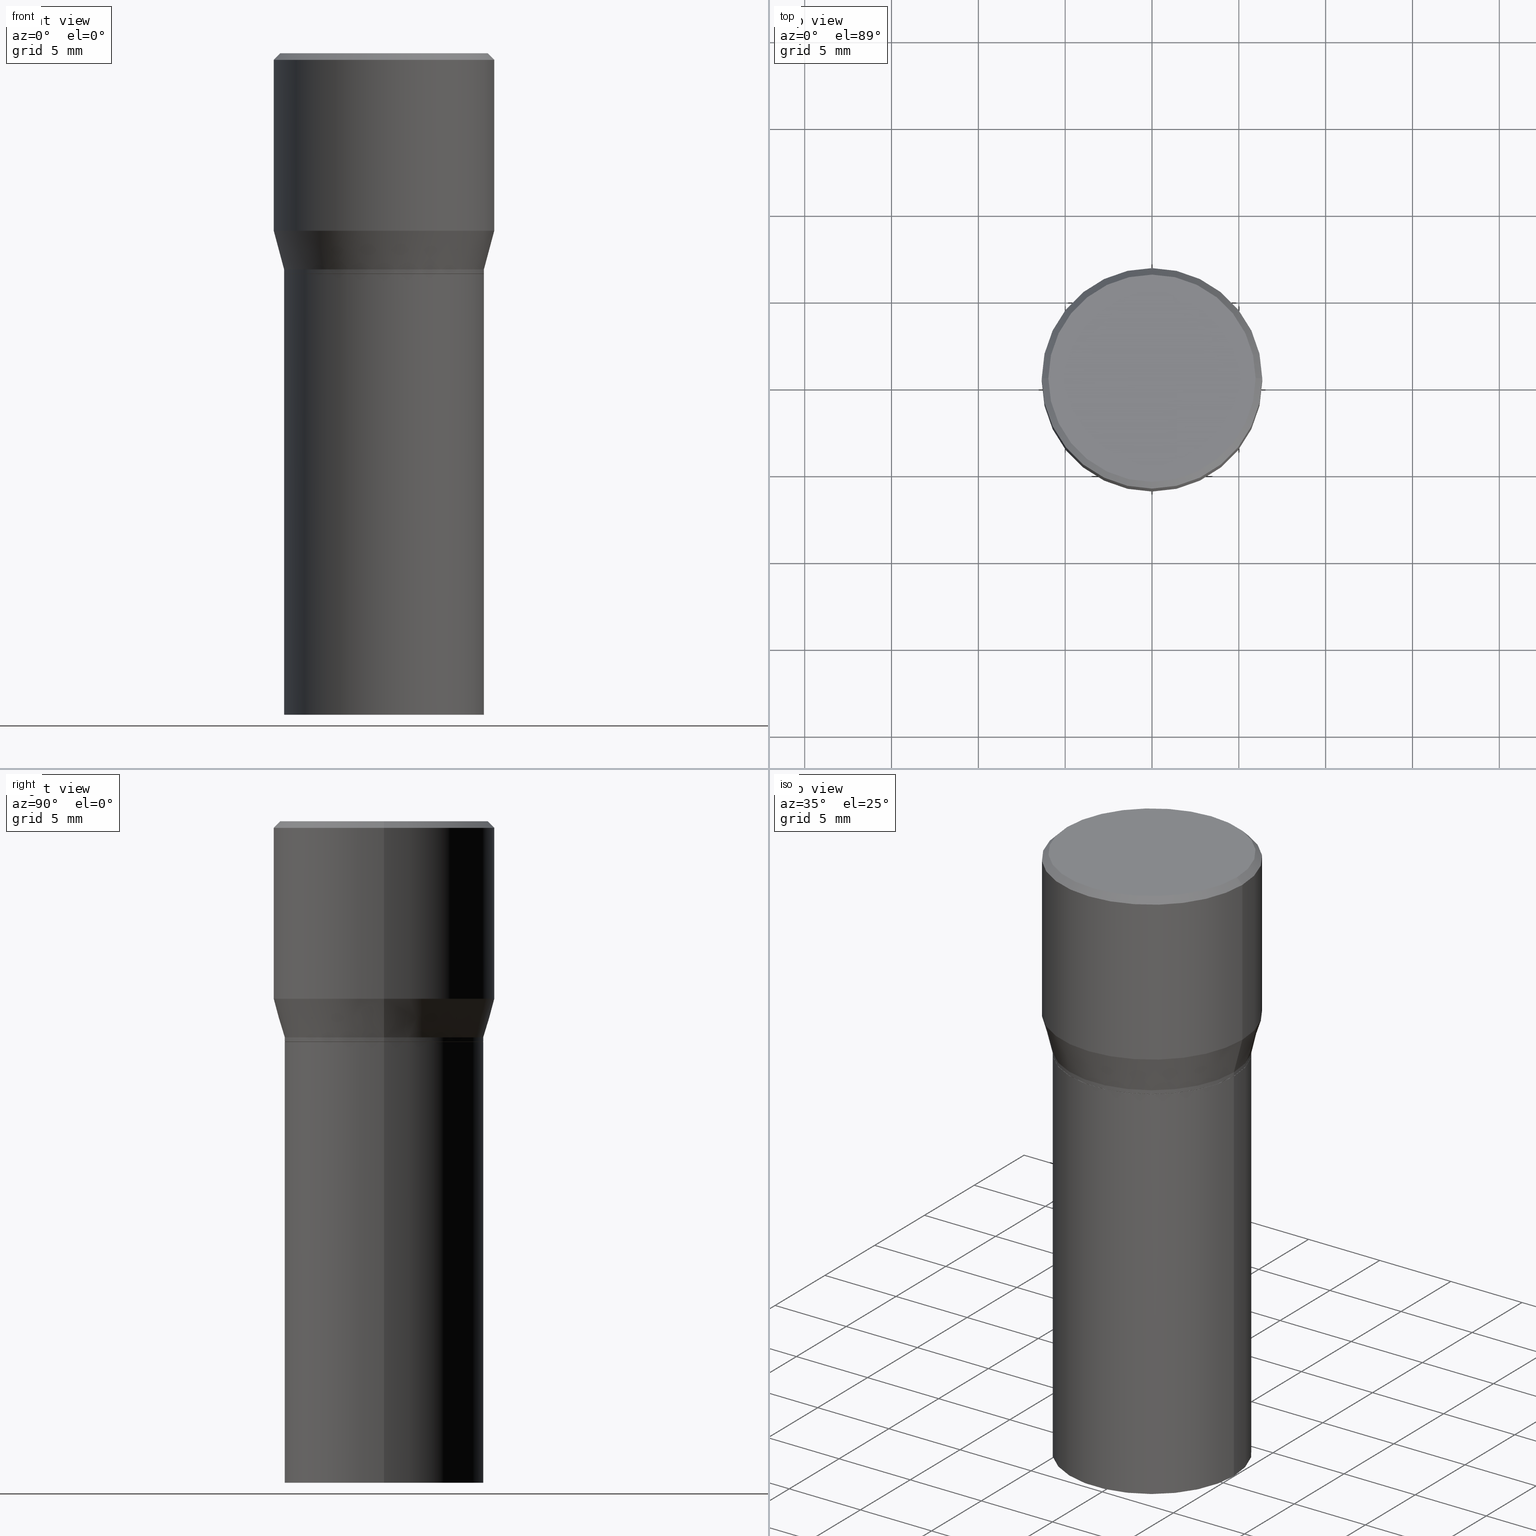
[diagram: canonical four-view strip — front | top / right | iso, engineering-drawing reading convention]
A machine part, canonical four-view strip (front | top / right | iso — engineering-drawing reading convention). The complete STEP part file that produces these views, byte-faithful:
ISO-10303-21;
HEADER;
FILE_DESCRIPTION (( 'STEP AP203' ),
    '1' );
FILE_NAME ('39557.STEP',
    '2024-03-12T19:03:33',
    ( '' ),
    ( '' ),
    'SwSTEP 2.0',
    'SolidWorks 2023',
    '' );
FILE_SCHEMA (( 'CONFIG_CONTROL_DESIGN' ));
ENDSEC;

DATA;
#1 = ORIENTED_EDGE ( 'NONE', *, *, #278, .F. ) ;
#2 = APPROVAL_DATE_TIME ( #72, #68 ) ;
#3 = VECTOR ( 'NONE', #301, 39.37007874015748143 ) ;
#4 = CC_DESIGN_SECURITY_CLASSIFICATION ( #40, ( #18 ) ) ;
#5 = EDGE_CURVE ( 'NONE', #112, #214, #177, .T. ) ;
#6 = CARTESIAN_POINT ( 'NONE',  ( 0.2265500000000000014, -3.325985123381975211E-15, -0.4995000000000001661 ) ) ;
#7 = UNCERTAINTY_MEASURE_WITH_UNIT (LENGTH_MEASURE( 1.000000000000000082E-05 ), #57, 'distance_accuracy_value', 'NONE');
#8 = CARTESIAN_POINT ( 'NONE',  ( 3.668203209277705088E-31, -5.237222008264718399E-17, -0.01499999999999999944 ) ) ;
#9 = CARTESIAN_POINT ( 'NONE',  ( 3.668203209277705088E-31, -5.237222008264718399E-17, -0.01499999999999999944 ) ) ;
#10 = AXIS2_PLACEMENT_3D ( 'NONE', #48, #300, #348 ) ;
#11 = CARTESIAN_POINT ( 'NONE',  ( 1.222734403092568719E-29, -1.745740669421573186E-15, -0.5000000000000001110 ) ) ;
#12 = EDGE_LOOP ( 'NONE', ( #218, #349, #434, #422 ) ) ;
#13 = EDGE_CURVE ( 'NONE', #437, #183, #339, .T. ) ;
#14 = CARTESIAN_POINT ( 'NONE',  ( 0.2500000000000000000, -1.798112889504214151E-15, -0.01499999999999999944 ) ) ;
#15 = CARTESIAN_POINT ( 'NONE',  ( -0.2265500000000000014, -1.881746770978639193E-15, -1.500000000000000222 ) ) ;
#16 = ORIENTED_EDGE ( 'NONE', *, *, #458, .F. ) ;
#17 = EDGE_CURVE ( 'NONE', #400, #259, #130, .T. ) ;
#18 = PRODUCT_DEFINITION_FORMATION_WITH_SPECIFIED_SOURCE ( 'ANY', '', #267, .NOT_KNOWN. ) ;
#19 = FACE_OUTER_BOUND ( 'NONE', #45, .T. ) ;
#20 = CC_DESIGN_PERSON_AND_ORGANIZATION_ASSIGNMENT ( #293, #216, ( #36 ) ) ;
#21 = ORIENTED_EDGE ( 'NONE', *, *, #246, .T. ) ;
#22 = PERSON ( 'UNSPECIFIED', 'UNSPECIFIED', 'UNSPECIFIED', ('UNSPECIFIED'), ('UNSPECIFIED'), ('UNSPECIFIED') ) ;
#23 = CARTESIAN_POINT ( 'NONE',  ( -0.2265500000000000014, -1.342603608876448985E-16, -0.4995000000000001661 ) ) ;
#24 = DIRECTION ( 'NONE',  ( -2.445468806185136597E-29, 3.491481338843145583E-15, 1.000000000000000000 ) ) ;
#25 = CARTESIAN_POINT ( 'NONE',  ( -0.2265499999999999736, 1.350011205208151600E-16, -0.4900000000000001021 ) ) ;
#26 = AXIS2_PLACEMENT_3D ( 'NONE', #432, #414, #236 ) ;
#27 = AXIS2_PLACEMENT_3D ( 'NONE', #441, #111, #418 ) ;
#28 = EDGE_CURVE ( 'NONE', #323, #235, #233, .T. ) ;
#29 = CALENDAR_DATE ( 2024, 12, 3 ) ;
#30 = APPROVAL_STATUS ( 'not_yet_approved' ) ;
#31 = EDGE_CURVE ( 'NONE', #259, #220, #194, .T. ) ;
#32 = CALENDAR_DATE ( 2024, 12, 3 ) ;
#33 = EDGE_LOOP ( 'NONE', ( #140, #453, #101, #168 ) ) ;
#34 = AXIS2_PLACEMENT_3D ( 'NONE', #389, #356, #321 ) ;
#35 = CALENDAR_DATE ( 2024, 12, 3 ) ;
#36 = PRODUCT_DEFINITION ( 'UNKNOWN', '', #18, #63 ) ;
#37 = FACE_OUTER_BOUND ( 'NONE', #62, .T. ) ;
#38 = PERSON_AND_ORGANIZATION ( #22, #124 ) ;
#39 = VECTOR ( 'NONE', #443, 39.37007874015748854 ) ;
#40 = SECURITY_CLASSIFICATION ( '', '', #358 ) ;
#41 = CARTESIAN_POINT ( 'NONE',  ( -0.2265499999999999736, -1.010912881686348269E-16, -0.4900000000000001021 ) ) ;
#42 = CYLINDRICAL_SURFACE ( 'NONE', #364, 0.2500000000000000000 ) ;
#43 = CARTESIAN_POINT ( 'NONE',  ( 0.2265500000000000014, -1.581990194629823726E-15, 1.104697848556569281E-29 ) ) ;
#44 = CARTESIAN_POINT ( 'NONE',  ( 0.2260500000000000009, -3.324239382712553708E-15, -0.5000000000000001110 ) ) ;
#45 = EDGE_LOOP ( 'NONE', ( #91, #163, #61, #181 ) ) ;
#46 = CONICAL_SURFACE ( 'NONE', #27, 0.2500000000000000000, 0.7853981633974435050 ) ;
#47 = LINE ( 'NONE', #118, #170 ) ;
#48 = CARTESIAN_POINT ( 'NONE',  ( 1.640996229256272519E-15, 0.2349999999999999867, -7.420662724610952803E-16 ) ) ;
#49 = CARTESIAN_POINT ( 'NONE',  ( -0.2260500000000000009, -1.395588152358667583E-16, -0.5000000000000001110 ) ) ;
#50 = CARTESIAN_POINT ( 'NONE',  ( -3.836052468622837406E-45, 5.476866265946494270E-31, 1.568636843340877764E-16 ) ) ;
#51 = ORIENTED_EDGE ( 'NONE', *, *, #13, .F. ) ;
#52 = CIRCLE ( 'NONE', #104, 0.2349999999999999867 ) ;
#53 = ADVANCED_FACE ( 'NONE', ( #346 ), #304, .T. ) ;
#54 = DIRECTION ( 'NONE',  ( 1.000000000000000000, -6.982962677686265922E-15, 0.000000000000000000 ) ) ;
#55 = CARTESIAN_POINT ( 'NONE',  ( 1.222734403092568719E-29, -1.745740669421573186E-15, -0.5000000000000001110 ) ) ;
#56 = ADVANCED_FACE ( 'NONE', ( #81 ), #237, .T. ) ;
#57 =( CONVERSION_BASED_UNIT ( 'INCH', #93 ) LENGTH_UNIT ( ) NAMED_UNIT ( #253 ) );
#58 = ORIENTED_EDGE ( 'NONE', *, *, #86, .T. ) ;
#59 = DIRECTION ( 'NONE',  ( 1.000000000000000000, -6.982962677686267499E-15, 4.878549297894958458E-29 ) ) ;
#60 = FACE_OUTER_BOUND ( 'NONE', #143, .T. ) ;
#61 = ORIENTED_EDGE ( 'NONE', *, *, #383, .T. ) ;
#62 = EDGE_LOOP ( 'NONE', ( #464, #145, #297, #379 ) ) ;
#63 = DESIGN_CONTEXT ( 'detailed design', #217, 'design' ) ;
#64 = PERSON_AND_ORGANIZATION_ROLE ( 'design_supplier' ) ;
#65 = PERSON_AND_ORGANIZATION_ROLE ( 'classification_officer' ) ;
#66 = VERTEX_POINT ( 'NONE', #406 ) ;
#67 = AXIS2_PLACEMENT_3D ( 'NONE', #213, #208, #354 ) ;
#68 = APPROVAL ( #30, 'UNSPECIFIED' ) ;
#69 = CARTESIAN_POINT ( 'NONE',  ( 0.000000000000000000, 0.000000000000000000, 0.000000000000000000 ) ) ;
#70 = DIRECTION ( 'NONE',  ( -2.445468806185136597E-29, 3.491481338843145583E-15, 1.000000000000000000 ) ) ;
#71 = PERSON_AND_ORGANIZATION ( #22, #124 ) ;
#72 = DATE_AND_TIME ( #221, #85 ) ;
#73 = EDGE_CURVE ( 'NONE', #235, #66, #326, .T. ) ;
#74 = DIRECTION ( 'NONE',  ( 1.000000000000000000, -6.982962677686266711E-15, 4.876176775795935793E-29 ) ) ;
#75 = FACE_OUTER_BOUND ( 'NONE', #409, .T. ) ;
#76 = AXIS2_PLACEMENT_3D ( 'NONE', #9, #117, #271 ) ;
#77 = LOCAL_TIME ( 15, 3, 33.00000000000000000, #256 ) ;
#78 = FACE_OUTER_BOUND ( 'NONE', #391, .T. ) ;
#79 = EDGE_CURVE ( 'NONE', #259, #400, #444, .T. ) ;
#80 = DIRECTION ( 'NONE',  ( -2.445468806185136597E-29, 3.491481338843145583E-15, 1.000000000000000000 ) ) ;
#81 = FACE_OUTER_BOUND ( 'NONE', #105, .T. ) ;
#82 = ADVANCED_FACE ( 'NONE', ( #37 ), #290, .T. ) ;
#83 = CARTESIAN_POINT ( 'NONE',  ( 3.576687321579069994E-29, -5.368277968210015545E-15, -1.500000000000000222 ) ) ;
#84 = AXIS2_PLACEMENT_3D ( 'NONE', #252, #277, #419 ) ;
#85 = LOCAL_TIME ( 15, 3, 33.00000000000000000, #332 ) ;
#86 = EDGE_CURVE ( 'NONE', #437, #400, #384, .T. ) ;
#87 = LINE ( 'NONE', #238, #98 ) ;
#88 = LINE ( 'NONE', #390, #282 ) ;
#89 = ADVANCED_FACE ( 'NONE', ( #115 ), #225, .T. ) ;
#90 = CARTESIAN_POINT ( 'NONE',  ( -0.2260500000000000009, -1.369095880617559516E-16, -0.5000000000000001110 ) ) ;
#91 = ORIENTED_EDGE ( 'NONE', *, *, #246, .F. ) ;
#92 = PLANE ( 'NONE',  #34 ) ;
#93 = LENGTH_MEASURE_WITH_UNIT ( LENGTH_MEASURE( 0.02539999999999999897 ), #459 );
#94 = ORIENTED_EDGE ( 'NONE', *, *, #309, .F. ) ;
#95 = DIRECTION ( 'NONE',  ( -2.445468806185136597E-29, 3.491481338843145583E-15, 1.000000000000000000 ) ) ;
#96 = ORIENTED_EDGE ( 'NONE', *, *, #278, .T. ) ;
#97 = PERSON_AND_ORGANIZATION ( #22, #124 ) ;
#98 = VECTOR ( 'NONE', #241, 39.37007874015748143 ) ;
#99 = DIRECTION ( 'NONE',  ( 1.000000000000000000, 0.000000000000000000, 0.000000000000000000 ) ) ;
#100 = ORIENTED_EDGE ( 'NONE', *, *, #17, .T. ) ;
#101 = ORIENTED_EDGE ( 'NONE', *, *, #373, .T. ) ;
#102 = EDGE_LOOP ( 'NONE', ( #144, #122 ) ) ;
#103 = CLOSED_SHELL ( 'NONE', ( #82, #206, #89, #344 ) ) ;
#104 = AXIS2_PLACEMENT_3D ( 'NONE', #50, #24, #128 ) ;
#105 = EDGE_LOOP ( 'NONE', ( #313, #100, #250, #16 ) ) ;
#106 = ADVANCED_FACE ( 'NONE', ( #380 ), #155, .T. ) ;
#107 = CARTESIAN_POINT ( 'NONE',  ( 1.222734403092568719E-29, -1.745740669421573186E-15, -0.5000000000000001110 ) ) ;
#108 = ORIENTED_EDGE ( 'NONE', *, *, #135, .T. ) ;
#109 =( NAMED_UNIT ( * ) PLANE_ANGLE_UNIT ( ) SI_UNIT ( $, .RADIAN. ) );
#110 = DIRECTION ( 'NONE',  ( 1.000000000000000000, -6.982962677686266711E-15, 4.876176775795935793E-29 ) ) ;
#111 = DIRECTION ( 'NONE',  ( 2.445468806185136597E-29, -3.491481338843145583E-15, -1.000000000000000000 ) ) ;
#112 = VERTEX_POINT ( 'NONE', #119 ) ;
#113 = CARTESIAN_POINT ( 'NONE',  ( 1.222734403092568719E-29, -1.745740669421573186E-15, -0.5000000000000001110 ) ) ;
#114 = AXIS2_PLACEMENT_3D ( 'NONE', #385, #95, #126 ) ;
#115 = FACE_OUTER_BOUND ( 'NONE', #158, .T. ) ;
#116 = CARTESIAN_POINT ( 'NONE',  ( 0.000000000000000000, 0.000000000000000000, 0.000000000000000000 ) ) ;
#117 = DIRECTION ( 'NONE',  ( -2.445468806185136597E-29, 3.491481338843145583E-15, 1.000000000000000000 ) ) ;
#118 = CARTESIAN_POINT ( 'NONE',  ( 0.2500000000000000000, -1.745740669421566678E-15, 1.219044193948983948E-29 ) ) ;
#119 = CARTESIAN_POINT ( 'NONE',  ( -0.2349999999999999867, 1.667182339297596256E-15, 1.568636843340762393E-16 ) ) ;
#120 = EDGE_CURVE ( 'NONE', #329, #200, #460, .T. ) ;
#121 = DIRECTION ( 'NONE',  ( 1.000000000000000000, -6.982962677686267499E-15, 0.000000000000000000 ) ) ;
#122 = ORIENTED_EDGE ( 'NONE', *, *, #327, .T. ) ;
#123 = AXIS2_PLACEMENT_3D ( 'NONE', #8, #319, #133 ) ;
#124 = ORGANIZATION ( 'UNSPECIFIED', 'UNSPECIFIED', '' ) ;
#125 = CARTESIAN_POINT ( 'NONE',  ( 3.668203209277704895E-29, -5.237222008264718177E-15, -1.500000000000000222 ) ) ;
#126 = DIRECTION ( 'NONE',  ( 1.000000000000000000, -6.982962677686265922E-15, 0.000000000000000000 ) ) ;
#127 = ORIENTED_EDGE ( 'NONE', *, *, #317, .F. ) ;
#128 = DIRECTION ( 'NONE',  ( 1.000000000000000000, -6.982962677686267499E-15, 4.878549297894958458E-29 ) ) ;
#129 = EDGE_CURVE ( 'NONE', #183, #259, #283, .T. ) ;
#130 = CIRCLE ( 'NONE', #394, 0.2265500000000000014 ) ;
#131 = AXIS2_PLACEMENT_3D ( 'NONE', #454, #244, #54 ) ;
#132 = CARTESIAN_POINT ( 'NONE',  ( 0.2265499999999999736, -3.292816050662964671E-15, -0.4900000000000001021 ) ) ;
#133 = DIRECTION ( 'NONE',  ( 1.000000000000000000, -6.982962677686266711E-15, 0.000000000000000000 ) ) ;
#134 = EDGE_LOOP ( 'NONE', ( #229, #308, #462, #426 ) ) ;
#135 = EDGE_CURVE ( 'NONE', #183, #437, #450, .T. ) ;
#136 = DIRECTION ( 'NONE',  ( 0.2588190451025214611, 1.565188264969621573E-15, 0.9659258262890682012 ) ) ;
#137 = ORIENTED_EDGE ( 'NONE', *, *, #17, .F. ) ;
#138 = CARTESIAN_POINT ( 'NONE',  ( 1.222734403092568719E-29, -1.745740669421573186E-15, -0.5000000000000001110 ) ) ;
#139 = DATE_AND_TIME ( #32, #335 ) ;
#140 = ORIENTED_EDGE ( 'NONE', *, *, #176, .F. ) ;
#141 = APPROVAL_ROLE ( '' ) ;
#142 = AXIS2_PLACEMENT_3D ( 'NONE', #273, #307, #121 ) ;
#143 = EDGE_LOOP ( 'NONE', ( #178, #51 ) ) ;
#144 = ORIENTED_EDGE ( 'NONE', *, *, #5, .T. ) ;
#145 = ORIENTED_EDGE ( 'NONE', *, *, #317, .T. ) ;
#146 = DATE_AND_TIME ( #189, #254 ) ;
#147 = EDGE_LOOP ( 'NONE', ( #152, #174 ) ) ;
#148 = DIRECTION ( 'NONE',  ( 1.000000000000000000, -6.982962677686265922E-15, 0.000000000000000000 ) ) ;
#149 = PERSON_AND_ORGANIZATION ( #22, #124 ) ;
#150 = AXIS2_PLACEMENT_3D ( 'NONE', #11, #199, #447 ) ;
#151 = DIRECTION ( 'NONE',  ( 1.000000000000000000, -6.982962677686266711E-15, 0.000000000000000000 ) ) ;
#152 = ORIENTED_EDGE ( 'NONE', *, *, #73, .T. ) ;
#153 = ADVANCED_FACE ( 'NONE', ( #78 ), #42, .T. ) ;
#154 = PLANE ( 'NONE',  #10 ) ;
#155 = CYLINDRICAL_SURFACE ( 'NONE', #211, 0.2265500000000000014 ) ;
#156 = CARTESIAN_POINT ( 'NONE',  ( 0.2260500000000000009, -3.324239382712553708E-15, -0.5000000000000001110 ) ) ;
#157 = APPROVAL ( #439, 'UNSPECIFIED' ) ;
#158 = EDGE_LOOP ( 'NONE', ( #127, #455, #371, #428 ) ) ;
#159 = ADVANCED_FACE ( 'NONE', ( #231 ), #288, .T. ) ;
#160 = CIRCLE ( 'NONE', #131, 0.2265499999999999736 ) ;
#161 = DIRECTION ( 'NONE',  ( -2.445468806185136877E-29, 3.491481338843145188E-15, 1.000000000000000000 ) ) ;
#162 = DIRECTION ( 'NONE',  ( 0.7071067811865715536, -2.468850131082509496E-15, 0.7071067811865232589 ) ) ;
#163 = ORIENTED_EDGE ( 'NONE', *, *, #5, .F. ) ;
#164 = DIRECTION ( 'NONE',  ( 1.000000000000000000, -6.982962677686266711E-15, 4.876176775795935793E-29 ) ) ;
#165 = DIRECTION ( 'NONE',  ( 1.000000000000000000, -6.982962677686265922E-15, 4.876176775795935793E-29 ) ) ;
#166 = EDGE_CURVE ( 'NONE', #210, #200, #47, .T. ) ;
#167 = CARTESIAN_POINT ( 'NONE',  ( 0.2265500000000000014, -6.819212202894542298E-15, -1.500000000000000222 ) ) ;
#168 = ORIENTED_EDGE ( 'NONE', *, *, #359, .F. ) ;
#169 = VECTOR ( 'NONE', #161, 39.37007874015748143 ) ;
#170 = VECTOR ( 'NONE', #368, 39.37007874015748143 ) ;
#171 = DIRECTION ( 'NONE',  ( 1.000000000000000000, -6.982962677686265922E-15, 0.000000000000000000 ) ) ;
#172 = ORIENTED_EDGE ( 'NONE', *, *, #306, .T. ) ;
#173 = PLANE ( 'NONE',  #67 ) ;
#174 = ORIENTED_EDGE ( 'NONE', *, *, #402, .T. ) ;
#175 = DIRECTION ( 'NONE',  ( -2.445468806185136597E-29, 3.491481338843145583E-15, 1.000000000000000000 ) ) ;
#176 = EDGE_CURVE ( 'NONE', #411, #232, #377, .T. ) ;
#177 = CIRCLE ( 'NONE', #423, 0.2349999999999999867 ) ;
#178 = ORIENTED_EDGE ( 'NONE', *, *, #135, .F. ) ;
#179 = PERSON_AND_ORGANIZATION ( #22, #124 ) ;
#180 = ORIENTED_EDGE ( 'NONE', *, *, #209, .F. ) ;
#181 = ORIENTED_EDGE ( 'NONE', *, *, #120, .T. ) ;
#182 = CC_DESIGN_PERSON_AND_ORGANIZATION_ASSIGNMENT ( #97, #64, ( #18 ) ) ;
#183 = VERTEX_POINT ( 'NONE', #44 ) ;
#184 = PERSON_AND_ORGANIZATION ( #22, #124 ) ;
#185 = AXIS2_PLACEMENT_3D ( 'NONE', #270, #226, #110 ) ;
#186 = APPROVAL_DATE_TIME ( #139, #298 ) ;
#187 = CIRCLE ( 'NONE', #245, 0.2265500000000000014 ) ;
#188 = DIRECTION ( 'NONE',  ( -2.445468806185136597E-29, 3.491481338843145583E-15, 1.000000000000000000 ) ) ;
#189 = CALENDAR_DATE ( 2024, 12, 3 ) ;
#190 = VECTOR ( 'NONE', #162, 39.37007874015748854 ) ;
#191 = APPROVAL_PERSON_ORGANIZATION ( #149, #157, #141 ) ;
#192 = FACE_OUTER_BOUND ( 'NONE', #382, .T. ) ;
#193 = DIRECTION ( 'NONE',  ( -2.445468806185136597E-29, 3.491481338843145583E-15, 1.000000000000000000 ) ) ;
#194 = LINE ( 'NONE', #340, #169 ) ;
#195 = PLANE ( 'NONE',  #204 ) ;
#196 = EDGE_LOOP ( 'NONE', ( #108, #58, #352, #251 ) ) ;
#197 = AXIS2_PLACEMENT_3D ( 'NONE', #69, #330, #74 ) ;
#198 = VECTOR ( 'NONE', #315, 39.37007874015748143 ) ;
#199 = DIRECTION ( 'NONE',  ( -2.445468806185136597E-29, 3.491481338843145583E-15, 1.000000000000000000 ) ) ;
#200 = VERTEX_POINT ( 'NONE', #14 ) ;
#201 = DIRECTION ( 'NONE',  ( -2.445468806185136597E-29, 3.491481338843145583E-15, 1.000000000000000000 ) ) ;
#202 = CARTESIAN_POINT ( 'NONE',  ( 1.198279715030717173E-29, -1.710825856033141537E-15, -0.4900000000000001021 ) ) ;
#203 = ORIENTED_EDGE ( 'NONE', *, *, #31, .F. ) ;
#204 = AXIS2_PLACEMENT_3D ( 'NONE', #83, #234, #165 ) ;
#205 = AXIS2_PLACEMENT_3D ( 'NONE', #274, #415, #151 ) ;
#206 = ADVANCED_FACE ( 'NONE', ( #192 ), #195, .F. ) ;
#207 = CARTESIAN_POINT ( 'NONE',  ( -0.2265500000000000014, 1.609734567864506981E-15, -1.114384744697248863E-29 ) ) ;
#208 = DIRECTION ( 'NONE',  ( -2.438088387897960049E-29, 3.491481338843145188E-15, 1.000000000000000000 ) ) ;
#209 = EDGE_CURVE ( 'NONE', #320, #323, #266, .T. ) ;
#210 = VERTEX_POINT ( 'NONE', #342 ) ;
#211 = AXIS2_PLACEMENT_3D ( 'NONE', #345, #372, #276 ) ;
#212 = AXIS2_PLACEMENT_3D ( 'NONE', #370, #193, #337 ) ;
#213 = CARTESIAN_POINT ( 'NONE',  ( 1.222734403092568719E-29, -1.745740669421573186E-15, -0.5000000000000001110 ) ) ;
#214 = VERTEX_POINT ( 'NONE', #449 ) ;
#215 = DIRECTION ( 'NONE',  ( -2.445468806185136597E-29, 3.491481338843145583E-15, 1.000000000000000000 ) ) ;
#216 = PERSON_AND_ORGANIZATION_ROLE ( 'creator' ) ;
#217 = APPLICATION_CONTEXT ( 'configuration controlled 3d designs of mechanical parts and assemblies' ) ;
#218 = ORIENTED_EDGE ( 'NONE', *, *, #247, .F. ) ;
#219 = DATE_TIME_ROLE ( 'classification_date' ) ;
#220 = VERTEX_POINT ( 'NONE', #268 ) ;
#221 = CALENDAR_DATE ( 2024, 12, 3 ) ;
#222 = MANIFOLD_SOLID_BREP ( 'Body-Move/Copy2[2]', #416 ) ;
#223 = MANIFOLD_SOLID_BREP ( 'Body-Move/Copy2[1]', #103 ) ;
#224 = APPLICATION_PROTOCOL_DEFINITION ( 'international standard', 'config_control_design', 1994, #378 ) ;
#225 = CYLINDRICAL_SURFACE ( 'NONE', #197, 0.2265500000000000014 ) ;
#226 = DIRECTION ( 'NONE',  ( -2.445468806185136597E-29, 3.491481338843145583E-15, 1.000000000000000000 ) ) ;
#227 = LINE ( 'NONE', #446, #228 ) ;
#228 = VECTOR ( 'NONE', #336, 39.37007874015748143 ) ;
#229 = ORIENTED_EDGE ( 'NONE', *, *, #448, .T. ) ;
#230 = ADVANCED_FACE ( 'NONE', ( #299 ), #407, .T. ) ;
#231 = FACE_OUTER_BOUND ( 'NONE', #338, .T. ) ;
#232 = VERTEX_POINT ( 'NONE', #408 ) ;
#233 = LINE ( 'NONE', #43, #3 ) ;
#234 = DIRECTION ( 'NONE',  ( -2.438088387897960049E-29, 3.491481338843145188E-15, 1.000000000000000000 ) ) ;
#235 = VERTEX_POINT ( 'NONE', #405 ) ;
#236 = DIRECTION ( 'NONE',  ( 1.000000000000000000, -6.982962677686266711E-15, 4.876176775795935793E-29 ) ) ;
#237 = CYLINDRICAL_SURFACE ( 'NONE', #185, 0.2265500000000000014 ) ;
#238 = CARTESIAN_POINT ( 'NONE',  ( 0.2500000000000000000, -1.767496719525530167E-15, -0.01499999999999999944 ) ) ;
#239 = AXIS2_PLACEMENT_3D ( 'NONE', #328, #70, #148 ) ;
#240 = CONICAL_SURFACE ( 'NONE', #114, 0.2265499999999999736, 0.2617993877991501295 ) ;
#241 = DIRECTION ( 'NONE',  ( 0.7071067811865441310, -7.319954787623245001E-15, -0.7071067811865509034 ) ) ;
#242 = DIRECTION ( 'NONE',  ( 2.445468806185136597E-29, -3.491481338843145583E-15, -1.000000000000000000 ) ) ;
#243 = ADVANCED_FACE ( 'NONE', ( #75 ), #46, .T. ) ;
#244 = DIRECTION ( 'NONE',  ( -2.445468806185136597E-29, 3.491481338843145583E-15, 1.000000000000000000 ) ) ;
#245 = AXIS2_PLACEMENT_3D ( 'NONE', #55, #393, #351 ) ;
#246 = EDGE_CURVE ( 'NONE', #214, #200, #87, .T. ) ;
#247 = EDGE_CURVE ( 'NONE', #232, #329, #227, .T. ) ;
#248 = DIRECTION ( 'NONE',  ( 1.000000000000000000, -6.982962677686267499E-15, 0.000000000000000000 ) ) ;
#249 = CARTESIAN_POINT ( 'NONE',  ( -0.2265500000000000014, 1.609734567864506981E-15, -1.114384744697248863E-29 ) ) ;
#250 = ORIENTED_EDGE ( 'NONE', *, *, #31, .T. ) ;
#251 = ORIENTED_EDGE ( 'NONE', *, *, #129, .F. ) ;
#252 = CARTESIAN_POINT ( 'NONE',  ( 9.842606206466859638E-30, -1.405263310189985589E-15, -0.4024834085625100810 ) ) ;
#253 = DIMENSIONAL_EXPONENTS ( 1.000000000000000000, 0.000000000000000000, 0.000000000000000000, 0.000000000000000000, 0.000000000000000000, 0.000000000000000000, 0.000000000000000000 ) ;
#254 = LOCAL_TIME ( 15, 3, 33.00000000000000000, #399 ) ;
#255 = APPROVAL_PERSON_ORGANIZATION ( #38, #68, #261 ) ;
#256 = COORDINATED_UNIVERSAL_TIME_OFFSET ( 5, 0, .BEHIND. ) ;
#257 = PERSON_AND_ORGANIZATION ( #22, #124 ) ;
#258 = DATE_TIME_ROLE ( 'creation_date' ) ;
#259 = VERTEX_POINT ( 'NONE', #6 ) ;
#260 = ADVANCED_FACE ( 'NONE', ( #381 ), #154, .F. ) ;
#261 = APPROVAL_ROLE ( '' ) ;
#262 = ADVANCED_FACE ( 'NONE', ( #442 ), #451, .T. ) ;
#263 = DIRECTION ( 'NONE',  ( -2.445468806185136597E-29, 3.491481338843145583E-15, 1.000000000000000000 ) ) ;
#264 = DIRECTION ( 'NONE',  ( -2.445468806185136597E-29, 3.491481338843145583E-15, 1.000000000000000000 ) ) ;
#265 = PRODUCT_RELATED_PRODUCT_CATEGORY ( 'detail', '', ( #267 ) ) ;
#266 = CIRCLE ( 'NONE', #142, 0.2265500000000000014 ) ;
#267 = PRODUCT ( '39557', '39557', '', ( #360 ) ) ;
#268 = CARTESIAN_POINT ( 'NONE',  ( 0.2265499999999999736, -3.292816050662964671E-15, -0.4900000000000001021 ) ) ;
#269 = CC_DESIGN_APPROVAL ( #68, ( #18 ) ) ;
#270 = CARTESIAN_POINT ( 'NONE',  ( 0.000000000000000000, 0.000000000000000000, 0.000000000000000000 ) ) ;
#271 = DIRECTION ( 'NONE',  ( 1.000000000000000000, -6.982962677686266711E-15, 0.000000000000000000 ) ) ;
#272 = DIRECTION ( 'NONE',  ( -2.445468806185136597E-29, 3.491481338843145583E-15, 1.000000000000000000 ) ) ;
#273 = CARTESIAN_POINT ( 'NONE',  ( 3.668203209277704895E-29, -5.237222008264718177E-15, -1.500000000000000222 ) ) ;
#274 = CARTESIAN_POINT ( 'NONE',  ( 1.222734403092568719E-29, -1.745740669421573186E-15, -0.5000000000000001110 ) ) ;
#275 = CIRCLE ( 'NONE', #318, 0.2500000000000000000 ) ;
#276 = DIRECTION ( 'NONE',  ( 1.000000000000000000, -6.982962677686266711E-15, 4.876176775795935793E-29 ) ) ;
#277 = DIRECTION ( 'NONE',  ( -2.445468806185136597E-29, 3.491481338843145583E-15, 1.000000000000000000 ) ) ;
#278 = EDGE_CURVE ( 'NONE', #200, #329, #388, .T. ) ;
#279 = LINE ( 'NONE', #207, #465 ) ;
#280 = ORIENTED_EDGE ( 'NONE', *, *, #13, .T. ) ;
#281 = FACE_OUTER_BOUND ( 'NONE', #33, .T. ) ;
#282 = VECTOR ( 'NONE', #284, 39.37007874015748143 ) ;
#283 = LINE ( 'NONE', #156, #190 ) ;
#284 = DIRECTION ( 'NONE',  ( -0.7071067811865441310, 2.468850131082221167E-15, -0.7071067811865509034 ) ) ;
#285 = DIRECTION ( 'NONE',  ( 1.000000000000000000, -6.982962677686266711E-15, 0.000000000000000000 ) ) ;
#286 = SHAPE_DEFINITION_REPRESENTATION ( #324, #314 ) ;
#287 = EDGE_CURVE ( 'NONE', #210, #232, #275, .T. ) ;
#288 = CONICAL_SURFACE ( 'NONE', #150, 0.2260500000000000009, 0.7853981633974824739 ) ;
#289 = COORDINATED_UNIVERSAL_TIME_OFFSET ( 5, 0, .BEHIND. ) ;
#290 = CYLINDRICAL_SURFACE ( 'NONE', #26, 0.2265500000000000014 ) ;
#291 = DIRECTION ( 'NONE',  ( -2.445468806185136597E-29, 3.491481338843145583E-15, 1.000000000000000000 ) ) ;
#292 = ADVANCED_FACE ( 'NONE', ( #281 ), #240, .T. ) ;
#293 = PERSON_AND_ORGANIZATION ( #22, #124 ) ;
#294 = ORIENTED_EDGE ( 'NONE', *, *, #448, .F. ) ;
#295 = DATE_AND_TIME ( #29, #77 ) ;
#296 = CIRCLE ( 'NONE', #84, 0.2500000000000000000 ) ;
#297 = ORIENTED_EDGE ( 'NONE', *, *, #73, .F. ) ;
#298 = APPROVAL ( #322, 'UNSPECIFIED' ) ;
#299 = FACE_OUTER_BOUND ( 'NONE', #196, .T. ) ;
#300 = DIRECTION ( 'NONE',  ( 2.438088387897960049E-29, -3.491481338843145188E-15, -1.000000000000000000 ) ) ;
#301 = DIRECTION ( 'NONE',  ( -2.445468806185136877E-29, 3.491481338843145188E-15, 1.000000000000000000 ) ) ;
#302 = AXIS2_PLACEMENT_3D ( 'NONE', #113, #264, #305 ) ;
#303 = CARTESIAN_POINT ( 'NONE',  ( 0.000000000000000000, 0.000000000000000000, 0.000000000000000000 ) ) ;
#304 = CYLINDRICAL_SURFACE ( 'NONE', #429, 0.2500000000000000000 ) ;
#305 = DIRECTION ( 'NONE',  ( 1.000000000000000000, -6.982962677686266711E-15, 0.000000000000000000 ) ) ;
#306 = EDGE_CURVE ( 'NONE', #400, #411, #279, .T. ) ;
#307 = DIRECTION ( 'NONE',  ( -2.445468806185136597E-29, 3.491481338843145583E-15, 1.000000000000000000 ) ) ;
#308 = ORIENTED_EDGE ( 'NONE', *, *, #176, .T. ) ;
#309 = EDGE_CURVE ( 'NONE', #323, #320, #417, .T. ) ;
#310 = DIRECTION ( 'NONE',  ( -2.445468806185136597E-29, 3.491481338843145583E-15, 1.000000000000000000 ) ) ;
#311 = CC_DESIGN_APPROVAL ( #157, ( #36 ) ) ;
#312 = LINE ( 'NONE', #132, #376 ) ;
#313 = ORIENTED_EDGE ( 'NONE', *, *, #306, .F. ) ;
#314 = ADVANCED_BREP_SHAPE_REPRESENTATION ( '39557', ( #223, #222, #395 ), #334 ) ;
#315 = DIRECTION ( 'NONE',  ( -2.445468806185136877E-29, 3.491481338843145188E-15, 1.000000000000000000 ) ) ;
#316 = EDGE_LOOP ( 'NONE', ( #440, #172, #294, #203 ) ) ;
#317 = EDGE_CURVE ( 'NONE', #320, #66, #452, .T. ) ;
#318 = AXIS2_PLACEMENT_3D ( 'NONE', #413, #80, #456 ) ;
#319 = DIRECTION ( 'NONE',  ( -2.445468806185136597E-29, 3.491481338843145583E-15, 1.000000000000000000 ) ) ;
#320 = VERTEX_POINT ( 'NONE', #15 ) ;
#321 = DIRECTION ( 'NONE',  ( -1.000000000000000000, 6.982962677686265922E-15, -4.876176775795935793E-29 ) ) ;
#322 = APPROVAL_STATUS ( 'not_yet_approved' ) ;
#323 = VERTEX_POINT ( 'NONE', #167 ) ;
#324 = PRODUCT_DEFINITION_SHAPE ( 'NONE', 'NONE',  #36 ) ;
#325 = CARTESIAN_POINT ( 'NONE',  ( 0.000000000000000000, 0.000000000000000000, 0.000000000000000000 ) ) ;
#326 = CIRCLE ( 'NONE', #333, 0.2265500000000000014 ) ;
#327 = EDGE_CURVE ( 'NONE', #214, #112, #52, .T. ) ;
#328 = CARTESIAN_POINT ( 'NONE',  ( 1.221511668689476057E-29, -1.743994928752151682E-15, -0.4995000000000001661 ) ) ;
#329 = VERTEX_POINT ( 'NONE', #461 ) ;
#330 = DIRECTION ( 'NONE',  ( -2.445468806185136597E-29, 3.491481338843145583E-15, 1.000000000000000000 ) ) ;
#331 = ORIENTED_EDGE ( 'NONE', *, *, #287, .T. ) ;
#332 = COORDINATED_UNIVERSAL_TIME_OFFSET ( 5, 0, .BEHIND. ) ;
#333 = AXIS2_PLACEMENT_3D ( 'NONE', #107, #263, #365 ) ;
#334 =( GEOMETRIC_REPRESENTATION_CONTEXT ( 3 ) GLOBAL_UNCERTAINTY_ASSIGNED_CONTEXT ( ( #7 ) ) GLOBAL_UNIT_ASSIGNED_CONTEXT ( ( #57, #109, #431 ) ) REPRESENTATION_CONTEXT ( 'NONE', 'WORKASPACE' ) );
#335 = LOCAL_TIME ( 15, 3, 33.00000000000000000, #463 ) ;
#336 = DIRECTION ( 'NONE',  ( -2.445468806185136877E-29, 3.491481338843145188E-15, 1.000000000000000000 ) ) ;
#337 = DIRECTION ( 'NONE',  ( 1.000000000000000000, -6.982962677686265922E-15, 0.000000000000000000 ) ) ;
#338 = EDGE_LOOP ( 'NONE', ( #361, #280, #375, #137 ) ) ;
#339 = CIRCLE ( 'NONE', #436, 0.2260500000000000009 ) ;
#340 = CARTESIAN_POINT ( 'NONE',  ( 0.2265500000000000014, -1.581990194629823726E-15, 1.104697848556569281E-29 ) ) ;
#341 = AXIS2_PLACEMENT_3D ( 'NONE', #202, #175, #171 ) ;
#342 = CARTESIAN_POINT ( 'NONE',  ( 0.2500000000000000000, -3.151003979611552069E-15, -0.4024834085625100810 ) ) ;
#343 = ORIENTED_EDGE ( 'NONE', *, *, #383, .F. ) ;
#344 = ADVANCED_FACE ( 'NONE', ( #420 ), #92, .F. ) ;
#345 = CARTESIAN_POINT ( 'NONE',  ( 0.000000000000000000, 0.000000000000000000, 0.000000000000000000 ) ) ;
#346 = FACE_OUTER_BOUND ( 'NONE', #12, .T. ) ;
#347 = DIRECTION ( 'NONE',  ( -0.2588190451025214611, 5.211531920934551042E-15, 0.9659258262890682012 ) ) ;
#348 = DIRECTION ( 'NONE',  ( -1.000000000000000000, 6.982962677686265922E-15, -4.876176775795935793E-29 ) ) ;
#349 = ORIENTED_EDGE ( 'NONE', *, *, #359, .T. ) ;
#350 = CC_DESIGN_PERSON_AND_ORGANIZATION_ASSIGNMENT ( #184, #65, ( #40 ) ) ;
#351 = DIRECTION ( 'NONE',  ( 1.000000000000000000, -6.982962677686266711E-15, 0.000000000000000000 ) ) ;
#352 = ORIENTED_EDGE ( 'NONE', *, *, #79, .F. ) ;
#353 = VECTOR ( 'NONE', #347, 39.37007874015747433 ) ;
#354 = DIRECTION ( 'NONE',  ( 1.000000000000000000, -6.982962677686265922E-15, 4.876176775795935793E-29 ) ) ;
#355 = CARTESIAN_POINT ( 'NONE',  ( 1.221511668689476057E-29, -1.743994928752151682E-15, -0.4995000000000001661 ) ) ;
#356 = DIRECTION ( 'NONE',  ( 2.438088387897960049E-29, -3.491481338843145188E-15, -1.000000000000000000 ) ) ;
#357 = CC_DESIGN_APPROVAL ( #298, ( #40 ) ) ;
#358 = SECURITY_CLASSIFICATION_LEVEL ( 'unclassified' ) ;
#359 = EDGE_CURVE ( 'NONE', #232, #210, #296, .T. ) ;
#360 = MECHANICAL_CONTEXT ( 'NONE', #378, 'mechanical' ) ;
#361 = ORIENTED_EDGE ( 'NONE', *, *, #86, .F. ) ;
#362 = APPROVAL_ROLE ( '' ) ;
#363 = ORIENTED_EDGE ( 'NONE', *, *, #166, .F. ) ;
#364 = AXIS2_PLACEMENT_3D ( 'NONE', #303, #201, #374 ) ;
#365 = DIRECTION ( 'NONE',  ( 1.000000000000000000, -6.982962677686266711E-15, 0.000000000000000000 ) ) ;
#366 = APPROVAL_PERSON_ORGANIZATION ( #179, #298, #362 ) ;
#367 = APPROVAL_DATE_TIME ( #146, #157 ) ;
#368 = DIRECTION ( 'NONE',  ( -2.445468806185136877E-29, 3.491481338843145188E-15, 1.000000000000000000 ) ) ;
#369 = CC_DESIGN_DATE_AND_TIME_ASSIGNMENT ( #435, #258, ( #36 ) ) ;
#370 = CARTESIAN_POINT ( 'NONE',  ( 1.198279715030717173E-29, -1.710825856033141537E-15, -0.4900000000000001021 ) ) ;
#371 = ORIENTED_EDGE ( 'NONE', *, *, #28, .T. ) ;
#372 = DIRECTION ( 'NONE',  ( -2.445468806185136597E-29, 3.491481338843145583E-15, 1.000000000000000000 ) ) ;
#373 = EDGE_CURVE ( 'NONE', #220, #210, #312, .T. ) ;
#374 = DIRECTION ( 'NONE',  ( 1.000000000000000000, -6.982962677686266711E-15, 4.876176775795935793E-29 ) ) ;
#375 = ORIENTED_EDGE ( 'NONE', *, *, #129, .T. ) ;
#376 = VECTOR ( 'NONE', #136, 39.37007874015747433 ) ;
#377 = LINE ( 'NONE', #41, #353 ) ;
#378 = APPLICATION_CONTEXT ( 'configuration controlled 3d designs of mechanical parts and assemblies' ) ;
#379 = ORIENTED_EDGE ( 'NONE', *, *, #28, .F. ) ;
#380 = FACE_OUTER_BOUND ( 'NONE', #316, .T. ) ;
#381 = FACE_OUTER_BOUND ( 'NONE', #102, .T. ) ;
#382 = EDGE_LOOP ( 'NONE', ( #94, #180 ) ) ;
#383 = EDGE_CURVE ( 'NONE', #112, #329, #88, .T. ) ;
#384 = LINE ( 'NONE', #49, #39 ) ;
#385 = CARTESIAN_POINT ( 'NONE',  ( 1.198279715030717173E-29, -1.710825856033141537E-15, -0.4900000000000001021 ) ) ;
#386 = DIRECTION ( 'NONE',  ( -1.000000000000000000, 6.982962677686266711E-15, 0.000000000000000000 ) ) ;
#387 = CC_DESIGN_PERSON_AND_ORGANIZATION_ASSIGNMENT ( #71, #397, ( #18 ) ) ;
#388 = CIRCLE ( 'NONE', #76, 0.2500000000000000000 ) ;
#389 = CARTESIAN_POINT ( 'NONE',  ( 1.581990194629835559E-15, 0.2265499999999982528, -0.5000000000000009992 ) ) ;
#390 = CARTESIAN_POINT ( 'NONE',  ( -0.2500000000000000000, 1.693368449338919401E-15, -0.01499999999999999944 ) ) ;
#391 = EDGE_LOOP ( 'NONE', ( #331, #398, #1, #363 ) ) ;
#392 = CARTESIAN_POINT ( 'NONE',  ( -3.836052468622837406E-45, 5.476866265946494270E-31, 1.568636843340877764E-16 ) ) ;
#393 = DIRECTION ( 'NONE',  ( -2.445468806185136597E-29, 3.491481338843145583E-15, 1.000000000000000000 ) ) ;
#394 = AXIS2_PLACEMENT_3D ( 'NONE', #355, #215, #412 ) ;
#395 = AXIS2_PLACEMENT_3D ( 'NONE', #325, #403, #99 ) ;
#396 = ADVANCED_FACE ( 'NONE', ( #19 ), #445, .T. ) ;
#397 = PERSON_AND_ORGANIZATION_ROLE ( 'creator' ) ;
#398 = ORIENTED_EDGE ( 'NONE', *, *, #247, .T. ) ;
#399 = COORDINATED_UNIVERSAL_TIME_OFFSET ( 5, 0, .BEHIND. ) ;
#400 = VERTEX_POINT ( 'NONE', #23 ) ;
#401 = AXIS2_PLACEMENT_3D ( 'NONE', #125, #310, #248 ) ;
#402 = EDGE_CURVE ( 'NONE', #66, #235, #187, .T. ) ;
#403 = DIRECTION ( 'NONE',  ( 0.000000000000000000, 0.000000000000000000, 1.000000000000000000 ) ) ;
#404 = ORIENTED_EDGE ( 'NONE', *, *, #327, .F. ) ;
#405 = CARTESIAN_POINT ( 'NONE',  ( 0.2265500000000000014, -3.327730864051397109E-15, -0.5000000000000001110 ) ) ;
#406 = CARTESIAN_POINT ( 'NONE',  ( -0.2265500000000000014, -1.881746770978639193E-15, -0.5000000000000001110 ) ) ;
#407 = CONICAL_SURFACE ( 'NONE', #205, 0.2260500000000000009, 0.7853981633974824739 ) ;
#408 = CARTESIAN_POINT ( 'NONE',  ( -0.2500000000000000000, 3.710935292102651716E-16, -0.4024834085625100810 ) ) ;
#409 = EDGE_LOOP ( 'NONE', ( #404, #21, #96, #343 ) ) ;
#410 = ADVANCED_FACE ( 'NONE', ( #60 ), #173, .F. ) ;
#411 = VERTEX_POINT ( 'NONE', #25 ) ;
#412 = DIRECTION ( 'NONE',  ( 1.000000000000000000, -6.982962677686265922E-15, 0.000000000000000000 ) ) ;
#413 = CARTESIAN_POINT ( 'NONE',  ( 9.842606206466859638E-30, -1.405263310189985589E-15, -0.4024834085625100810 ) ) ;
#414 = DIRECTION ( 'NONE',  ( -2.445468806185136597E-29, 3.491481338843145583E-15, 1.000000000000000000 ) ) ;
#415 = DIRECTION ( 'NONE',  ( -2.445468806185136597E-29, 3.491481338843145583E-15, 1.000000000000000000 ) ) ;
#416 = CLOSED_SHELL ( 'NONE', ( #106, #230, #243, #153, #262, #292, #53, #396, #260, #410, #159, #56 ) ) ;
#417 = CIRCLE ( 'NONE', #401, 0.2265500000000000014 ) ;
#418 = DIRECTION ( 'NONE',  ( -1.000000000000000000, 6.982962677686266711E-15, 0.000000000000000000 ) ) ;
#419 = DIRECTION ( 'NONE',  ( 1.000000000000000000, -6.982962677686265922E-15, 0.000000000000000000 ) ) ;
#420 = FACE_OUTER_BOUND ( 'NONE', #147, .T. ) ;
#421 = DIRECTION ( 'NONE',  ( -2.445468806185136877E-29, 3.491481338843145188E-15, 1.000000000000000000 ) ) ;
#422 = ORIENTED_EDGE ( 'NONE', *, *, #120, .F. ) ;
#423 = AXIS2_PLACEMENT_3D ( 'NONE', #392, #291, #59 ) ;
#424 = AXIS2_PLACEMENT_3D ( 'NONE', #425, #242, #386 ) ;
#425 = CARTESIAN_POINT ( 'NONE',  ( 3.668203209277705088E-31, -5.237222008264718399E-17, -0.01499999999999999944 ) ) ;
#426 = ORIENTED_EDGE ( 'NONE', *, *, #373, .F. ) ;
#427 = CC_DESIGN_DATE_AND_TIME_ASSIGNMENT ( #295, #219, ( #40 ) ) ;
#428 = ORIENTED_EDGE ( 'NONE', *, *, #402, .F. ) ;
#429 = AXIS2_PLACEMENT_3D ( 'NONE', #116, #272, #164 ) ;
#430 = LOCAL_TIME ( 15, 3, 33.00000000000000000, #289 ) ;
#431 =( NAMED_UNIT ( * ) SI_UNIT ( $, .STERADIAN. ) SOLID_ANGLE_UNIT ( ) );
#432 = CARTESIAN_POINT ( 'NONE',  ( 0.000000000000000000, 0.000000000000000000, 0.000000000000000000 ) ) ;
#433 = APPLICATION_PROTOCOL_DEFINITION ( 'international standard', 'config_control_design', 1994, #217 ) ;
#434 = ORIENTED_EDGE ( 'NONE', *, *, #166, .T. ) ;
#435 = DATE_AND_TIME ( #35, #430 ) ;
#436 = AXIS2_PLACEMENT_3D ( 'NONE', #138, #188, #285 ) ;
#437 = VERTEX_POINT ( 'NONE', #90 ) ;
#438 = CIRCLE ( 'NONE', #341, 0.2265499999999999736 ) ;
#439 = APPROVAL_STATUS ( 'not_yet_approved' ) ;
#440 = ORIENTED_EDGE ( 'NONE', *, *, #79, .T. ) ;
#441 = CARTESIAN_POINT ( 'NONE',  ( 3.668203209277705088E-31, -5.237222008264718399E-17, -0.01499999999999999944 ) ) ;
#442 = FACE_OUTER_BOUND ( 'NONE', #134, .T. ) ;
#443 = DIRECTION ( 'NONE',  ( -0.7071067811865715536, 7.493145998870439357E-15, 0.7071067811865232589 ) ) ;
#444 = CIRCLE ( 'NONE', #239, 0.2265500000000000014 ) ;
#445 = CONICAL_SURFACE ( 'NONE', #424, 0.2500000000000000000, 0.7853981633974435050 ) ;
#446 = CARTESIAN_POINT ( 'NONE',  ( -0.2500000000000000000, 1.776356839400250465E-15, -1.229733772563726445E-29 ) ) ;
#447 = DIRECTION ( 'NONE',  ( 1.000000000000000000, -6.982962677686266711E-15, 0.000000000000000000 ) ) ;
#448 = EDGE_CURVE ( 'NONE', #220, #411, #438, .T. ) ;
#449 = CARTESIAN_POINT ( 'NONE',  ( 0.2349999999999999867, -1.689856874500919833E-15, 1.568636843340994368E-16 ) ) ;
#450 = CIRCLE ( 'NONE', #302, 0.2260500000000000009 ) ;
#451 = CONICAL_SURFACE ( 'NONE', #212, 0.2265499999999999736, 0.2617993877991501295 ) ;
#452 = LINE ( 'NONE', #249, #198 ) ;
#453 = ORIENTED_EDGE ( 'NONE', *, *, #458, .T. ) ;
#454 = CARTESIAN_POINT ( 'NONE',  ( 1.198279715030717173E-29, -1.710825856033141537E-15, -0.4900000000000001021 ) ) ;
#455 = ORIENTED_EDGE ( 'NONE', *, *, #209, .T. ) ;
#456 = DIRECTION ( 'NONE',  ( 1.000000000000000000, -6.982962677686265922E-15, 0.000000000000000000 ) ) ;
#457 = CC_DESIGN_PERSON_AND_ORGANIZATION_ASSIGNMENT ( #257, #466, ( #267 ) ) ;
#458 = EDGE_CURVE ( 'NONE', #411, #220, #160, .T. ) ;
#459 =( LENGTH_UNIT ( ) NAMED_UNIT ( * ) SI_UNIT ( $, .METRE. ) );
#460 = CIRCLE ( 'NONE', #123, 0.2500000000000000000 ) ;
#461 = CARTESIAN_POINT ( 'NONE',  ( -0.2500000000000000000, 1.047539074263934229E-15, -0.01499999999999999944 ) ) ;
#462 = ORIENTED_EDGE ( 'NONE', *, *, #287, .F. ) ;
#463 = COORDINATED_UNIVERSAL_TIME_OFFSET ( 5, 0, .BEHIND. ) ;
#464 = ORIENTED_EDGE ( 'NONE', *, *, #309, .T. ) ;
#465 = VECTOR ( 'NONE', #421, 39.37007874015748143 ) ;
#466 = PERSON_AND_ORGANIZATION_ROLE ( 'design_owner' ) ;
ENDSEC;
END-ISO-10303-21;
